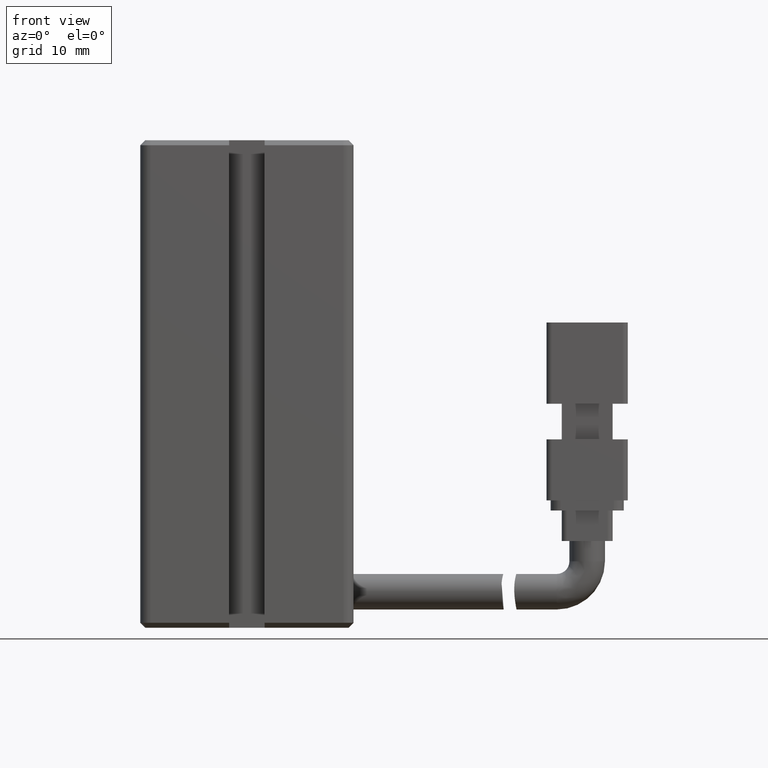
[diagram: clean part render]
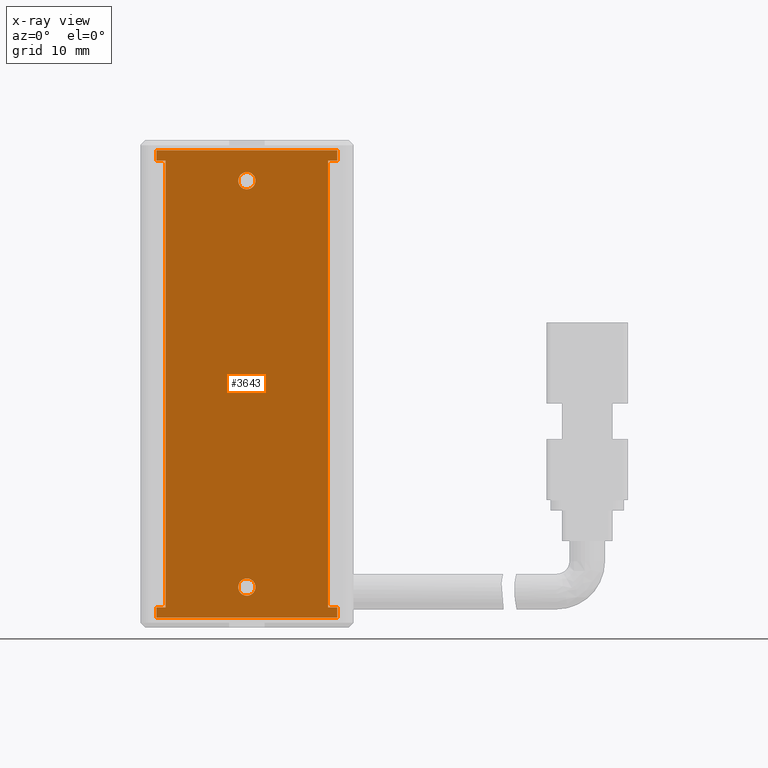
[diagram: x-ray — body ghosted, one internal face saturated and labeled with its STEP entity id]
A machine part, front view, then the same camera in x-ray: the body is ghosted and one INTERNAL B-rep face — a face not visible from any outside direction — is saturated and labeled: STEP entity #3643.
In plain terms, the highlighted planar face has unit normal (-0, 1, 0).
Its self-contained STEP definition (entity closure, byte-faithful):
#261 = CARTESIAN_POINT ( 'NONE',  ( 32.02537974683542600, 31.49073232304836600, -137.0000000000000000 ) ) ;
#787 = DIRECTION ( 'NONE',  ( -0.0000000000000000000, -0.0000000000000000000, -1.000000000000000000 ) ) ;
#891 = CARTESIAN_POINT ( 'NONE',  ( 32.92537974683542500, 31.49073232304836600, -93.00000000000000000 ) ) ;
#1002 = AXIS2_PLACEMENT_3D ( 'NONE', #29514, #32504, #20832 ) ;
#1579 = CIRCLE ( 'NONE', #1002, 0.8500000000000035300 ) ;
#2431 = ORIENTED_EDGE ( 'NONE', *, *, #8987, .F. ) ;
#2456 = VECTOR ( 'NONE', #2492, 1000.000000000000000 ) ;
#2492 = DIRECTION ( 'NONE',  ( 1.548860246407863500E-017, 0.0000000000000000000, 1.000000000000000000 ) ) ;
#2578 = VERTEX_POINT ( 'NONE', #3137 ) ;
#2895 = VERTEX_POINT ( 'NONE', #11013 ) ;
#3137 = CARTESIAN_POINT ( 'NONE',  ( 40.92537974683542500, 31.49073232304836600, -134.1500000000000100 ) ) ;
#3230 = DIRECTION ( 'NONE',  ( 0.0000000000000000000, 0.0000000000000000000, 1.000000000000000000 ) ) ;
#3346 = EDGE_CURVE ( 'NONE', #29775, #36792, #35245, .T. ) ;
#3635 = VERTEX_POINT ( 'NONE', #23216 ) ;
#3643 = ADVANCED_FACE ( 'NONE', ( #6165, #32904, #8985 ), #5674, .F. ) ;
#3812 = CARTESIAN_POINT ( 'NONE',  ( 32.92537974683542500, 31.49073232304836600, -91.00000000000000000 ) ) ;
#3838 = VECTOR ( 'NONE', #31213, 1000.000000000000000 ) ;
#3993 = DIRECTION ( 'NONE',  ( 1.000000000000000000, 0.0000000000000000000, -1.548860246407863500E-017 ) ) ;
#4321 = VECTOR ( 'NONE', #30539, 1000.000000000000000 ) ;
#5448 = ORIENTED_EDGE ( 'NONE', *, *, #3346, .F. ) ;
#5515 = CARTESIAN_POINT ( 'NONE',  ( 49.82537974683543100, 31.49073232304836600, -92.00000000000001400 ) ) ;
#5540 = CARTESIAN_POINT ( 'NONE',  ( 49.82537974683543100, 31.49073232304836600, -92.00000000000001400 ) ) ;
#5674 = PLANE ( 'NONE',  #19271 ) ;
#5704 = CARTESIAN_POINT ( 'NONE',  ( 40.92537974683542500, 31.49073232304836600, -135.0000000000000000 ) ) ;
#5876 = EDGE_LOOP ( 'NONE', ( #26740, #17049 ) ) ;
#6040 = VERTEX_POINT ( 'NONE', #34662 ) ;
#6165 = FACE_BOUND ( 'NONE', #5876, .T. ) ;
#6338 = EDGE_CURVE ( 'NONE', #12011, #13856, #37321, .T. ) ;
#6358 = CARTESIAN_POINT ( 'NONE',  ( 48.92537974683541800, 31.49073232304836600, -93.00000000000000000 ) ) ;
#6826 = CARTESIAN_POINT ( 'NONE',  ( 40.92537974683542500, 31.49073232304836600, -135.0000000000000000 ) ) ;
#6896 = DIRECTION ( 'NONE',  ( -1.548860246407863500E-017, -0.0000000000000000000, -1.000000000000000000 ) ) ;
#6992 = CARTESIAN_POINT ( 'NONE',  ( 49.82537974683543100, 31.49073232304836600, -138.0000000000000000 ) ) ;
#7050 = VERTEX_POINT ( 'NONE', #28350 ) ;
#7068 = ORIENTED_EDGE ( 'NONE', *, *, #35156, .F. ) ;
#7181 = CARTESIAN_POINT ( 'NONE',  ( 40.92537974683542500, 31.49073232304836600, -137.0000000000000000 ) ) ;
#7263 = EDGE_CURVE ( 'NONE', #32270, #21839, #1579, .T. ) ;
#7439 = VECTOR ( 'NONE', #6896, 1000.000000000000000 ) ;
#7597 = VECTOR ( 'NONE', #18818, 1000.000000000000000 ) ;
#7662 = CARTESIAN_POINT ( 'NONE',  ( 49.82537974683543100, 31.49073232304836600, -137.0000000000000000 ) ) ;
#8278 = VECTOR ( 'NONE', #28529, 1000.000000000000000 ) ;
#8333 = EDGE_LOOP ( 'NONE', ( #24780, #36559, #26144, #15850, #25729, #14798, #21122, #37350, #7068, #32623, #2431, #5448 ) ) ;
#8894 = VERTEX_POINT ( 'NONE', #891 ) ;
#8985 = FACE_OUTER_BOUND ( 'NONE', #8333, .T. ) ;
#8987 = EDGE_CURVE ( 'NONE', #36792, #2895, #31364, .T. ) ;
#9140 = LINE ( 'NONE', #29665, #38146 ) ;
#11013 = CARTESIAN_POINT ( 'NONE',  ( 49.82537974683543100, 31.49073232304836600, -93.00000000000000000 ) ) ;
#11033 = CARTESIAN_POINT ( 'NONE',  ( 49.82537974683543100, 31.49073232304836600, -92.00000000000001400 ) ) ;
#11419 = VECTOR ( 'NONE', #24206, 1000.000000000000000 ) ;
#11985 = CARTESIAN_POINT ( 'NONE',  ( 40.92537974683542500, 31.49073232304836600, -93.00000000000000000 ) ) ;
#12011 = VERTEX_POINT ( 'NONE', #6992 ) ;
#12376 = VECTOR ( 'NONE', #787, 1000.000000000000000 ) ;
#12558 = DIRECTION ( 'NONE',  ( -0.0000000000000000000, -1.000000000000000000, -0.0000000000000000000 ) ) ;
#13242 = LINE ( 'NONE', #21254, #18865 ) ;
#13659 = LINE ( 'NONE', #7181, #7597 ) ;
#13771 = EDGE_CURVE ( 'NONE', #33686, #29775, #34716, .T. ) ;
#13856 = VERTEX_POINT ( 'NONE', #28971 ) ;
#14010 = EDGE_CURVE ( 'NONE', #28179, #12011, #29092, .T. ) ;
#14386 = DIRECTION ( 'NONE',  ( -1.548860246407863500E-017, -0.0000000000000000000, -1.000000000000000000 ) ) ;
#14777 = VERTEX_POINT ( 'NONE', #6358 ) ;
#14798 = ORIENTED_EDGE ( 'NONE', *, *, #6338, .F. ) ;
#14940 = DIRECTION ( 'NONE',  ( 1.000000000000000000, 0.0000000000000000000, 0.0000000000000000000 ) ) ;
#15705 = CARTESIAN_POINT ( 'NONE',  ( 32.02537974683542600, 31.49073232304836600, -92.00000000000001400 ) ) ;
#15850 = ORIENTED_EDGE ( 'NONE', *, *, #29827, .T. ) ;
#15912 = CIRCLE ( 'NONE', #29853, 0.8499999999999896500 ) ;
#16162 = DIRECTION ( 'NONE',  ( -0.0000000000000000000, -1.000000000000000000, -0.0000000000000000000 ) ) ;
#17049 = ORIENTED_EDGE ( 'NONE', *, *, #7263, .F. ) ;
#17323 = LINE ( 'NONE', #17864, #2456 ) ;
#17864 = CARTESIAN_POINT ( 'NONE',  ( 32.02537974683542600, 31.49073232304836600, -92.00000000000001400 ) ) ;
#18818 = DIRECTION ( 'NONE',  ( -1.000000000000000000, -0.0000000000000000000, 0.0000000000000000000 ) ) ;
#18865 = VECTOR ( 'NONE', #14940, 1000.000000000000000 ) ;
#19044 = CARTESIAN_POINT ( 'NONE',  ( 49.82537974683543100, 31.49073232304836600, -138.0000000000000000 ) ) ;
#19271 = AXIS2_PLACEMENT_3D ( 'NONE', #5540, #26091, #32119 ) ;
#20091 = AXIS2_PLACEMENT_3D ( 'NONE', #21849, #16162, #36743 ) ;
#20326 = EDGE_CURVE ( 'NONE', #8894, #3635, #29321, .T. ) ;
#20333 = EDGE_CURVE ( 'NONE', #21839, #32270, #36733, .T. ) ;
#20832 = DIRECTION ( 'NONE',  ( 0.0000000000000000000, 0.0000000000000000000, 1.000000000000000000 ) ) ;
#21111 = VECTOR ( 'NONE', #14386, 1000.000000000000000 ) ;
#21122 = ORIENTED_EDGE ( 'NONE', *, *, #14010, .F. ) ;
#21254 = CARTESIAN_POINT ( 'NONE',  ( 40.92537974683542500, 31.49073232304836600, -137.0000000000000000 ) ) ;
#21839 = VERTEX_POINT ( 'NONE', #24455 ) ;
#21849 = CARTESIAN_POINT ( 'NONE',  ( 40.92537974683542500, 31.49073232304836600, -95.00000000000001400 ) ) ;
#22187 = CARTESIAN_POINT ( 'NONE',  ( 49.82537974683543100, 31.49073232304836600, -92.00000000000001400 ) ) ;
#22225 = CARTESIAN_POINT ( 'NONE',  ( 49.82537974683543100, 31.49073232304836600, -92.00000000000001400 ) ) ;
#22873 = EDGE_CURVE ( 'NONE', #2578, #7050, #26035, .T. ) ;
#23216 = CARTESIAN_POINT ( 'NONE',  ( 32.92537974683542500, 31.49073232304836600, -137.0000000000000000 ) ) ;
#23379 = EDGE_CURVE ( 'NONE', #2895, #14777, #27425, .T. ) ;
#24206 = DIRECTION ( 'NONE',  ( -1.000000000000000000, -0.0000000000000000000, -0.0000000000000000000 ) ) ;
#24455 = CARTESIAN_POINT ( 'NONE',  ( 40.92537974683542500, 31.49073232304836600, -94.15000000000000600 ) ) ;
#24780 = ORIENTED_EDGE ( 'NONE', *, *, #13771, .F. ) ;
#25087 = CARTESIAN_POINT ( 'NONE',  ( 32.02537974683542600, 31.49073232304836600, -93.00000000000000000 ) ) ;
#25729 = ORIENTED_EDGE ( 'NONE', *, *, #36247, .F. ) ;
#25976 = AXIS2_PLACEMENT_3D ( 'NONE', #6826, #12558, #33288 ) ;
#26035 = CIRCLE ( 'NONE', #25976, 0.8499999999999896500 ) ;
#26091 = DIRECTION ( 'NONE',  ( -0.0000000000000000000, 1.000000000000000000, 0.0000000000000000000 ) ) ;
#26116 = DIRECTION ( 'NONE',  ( -0.0000000000000000000, -0.0000000000000000000, -1.000000000000000000 ) ) ;
#26144 = ORIENTED_EDGE ( 'NONE', *, *, #20326, .T. ) ;
#26275 = CARTESIAN_POINT ( 'NONE',  ( 40.92537974683542500, 31.49073232304836600, -95.85000000000002300 ) ) ;
#26740 = ORIENTED_EDGE ( 'NONE', *, *, #20333, .F. ) ;
#27146 = CARTESIAN_POINT ( 'NONE',  ( 32.02537974683543400, 31.49073232304836600, -92.00000000000001400 ) ) ;
#27207 = EDGE_CURVE ( 'NONE', #33686, #8894, #28227, .T. ) ;
#27425 = LINE ( 'NONE', #11985, #11419 ) ;
#28179 = VERTEX_POINT ( 'NONE', #7662 ) ;
#28227 = LINE ( 'NONE', #30665, #4321 ) ;
#28350 = CARTESIAN_POINT ( 'NONE',  ( 40.92537974683542500, 31.49073232304836600, -135.8499999999999900 ) ) ;
#28529 = DIRECTION ( 'NONE',  ( -1.000000000000000000, -0.0000000000000000000, 1.548860246407863500E-017 ) ) ;
#28595 = ORIENTED_EDGE ( 'NONE', *, *, #36875, .F. ) ;
#28821 = VERTEX_POINT ( 'NONE', #261 ) ;
#28971 = CARTESIAN_POINT ( 'NONE',  ( 32.02537974683542600, 31.49073232304836600, -138.0000000000000000 ) ) ;
#29092 = LINE ( 'NONE', #5515, #21111 ) ;
#29235 = EDGE_CURVE ( 'NONE', #6040, #28179, #13242, .T. ) ;
#29321 = LINE ( 'NONE', #3812, #12376 ) ;
#29514 = CARTESIAN_POINT ( 'NONE',  ( 40.92537974683542500, 31.49073232304836600, -95.00000000000001400 ) ) ;
#29665 = CARTESIAN_POINT ( 'NONE',  ( 48.92537974683541800, 31.49073232304836600, -91.00000000000000000 ) ) ;
#29775 = VERTEX_POINT ( 'NONE', #27146 ) ;
#29827 = EDGE_CURVE ( 'NONE', #3635, #28821, #13659, .T. ) ;
#29853 = AXIS2_PLACEMENT_3D ( 'NONE', #5704, #33057, #3230 ) ;
#30539 = DIRECTION ( 'NONE',  ( 1.000000000000000000, -0.0000000000000000000, 0.0000000000000000000 ) ) ;
#30665 = CARTESIAN_POINT ( 'NONE',  ( 30.42537974683542500, 31.49073232304836600, -93.00000000000000000 ) ) ;
#31213 = DIRECTION ( 'NONE',  ( 1.548860246407863500E-017, 0.0000000000000000000, 1.000000000000000000 ) ) ;
#31364 = LINE ( 'NONE', #22225, #7439 ) ;
#31724 = ORIENTED_EDGE ( 'NONE', *, *, #22873, .F. ) ;
#32119 = DIRECTION ( 'NONE',  ( 1.548860246407863500E-017, 0.0000000000000000000, 1.000000000000000000 ) ) ;
#32270 = VERTEX_POINT ( 'NONE', #26275 ) ;
#32504 = DIRECTION ( 'NONE',  ( -0.0000000000000000000, -1.000000000000000000, -0.0000000000000000000 ) ) ;
#32623 = ORIENTED_EDGE ( 'NONE', *, *, #23379, .F. ) ;
#32904 = FACE_BOUND ( 'NONE', #35055, .T. ) ;
#33057 = DIRECTION ( 'NONE',  ( -0.0000000000000000000, -1.000000000000000000, -0.0000000000000000000 ) ) ;
#33288 = DIRECTION ( 'NONE',  ( 0.0000000000000000000, 0.0000000000000000000, 1.000000000000000000 ) ) ;
#33686 = VERTEX_POINT ( 'NONE', #25087 ) ;
#34323 = VECTOR ( 'NONE', #3993, 1000.000000000000000 ) ;
#34662 = CARTESIAN_POINT ( 'NONE',  ( 48.92537974683541800, 31.49073232304836600, -137.0000000000000000 ) ) ;
#34716 = LINE ( 'NONE', #15705, #3838 ) ;
#35055 = EDGE_LOOP ( 'NONE', ( #31724, #28595 ) ) ;
#35156 = EDGE_CURVE ( 'NONE', #14777, #6040, #9140, .T. ) ;
#35245 = LINE ( 'NONE', #22187, #34323 ) ;
#36247 = EDGE_CURVE ( 'NONE', #13856, #28821, #17323, .T. ) ;
#36559 = ORIENTED_EDGE ( 'NONE', *, *, #27207, .T. ) ;
#36733 = CIRCLE ( 'NONE', #20091, 0.8500000000000035300 ) ;
#36743 = DIRECTION ( 'NONE',  ( 0.0000000000000000000, 0.0000000000000000000, 1.000000000000000000 ) ) ;
#36792 = VERTEX_POINT ( 'NONE', #11033 ) ;
#36875 = EDGE_CURVE ( 'NONE', #7050, #2578, #15912, .T. ) ;
#37321 = LINE ( 'NONE', #19044, #8278 ) ;
#37350 = ORIENTED_EDGE ( 'NONE', *, *, #29235, .F. ) ;
#38146 = VECTOR ( 'NONE', #26116, 1000.000000000000000 ) ;